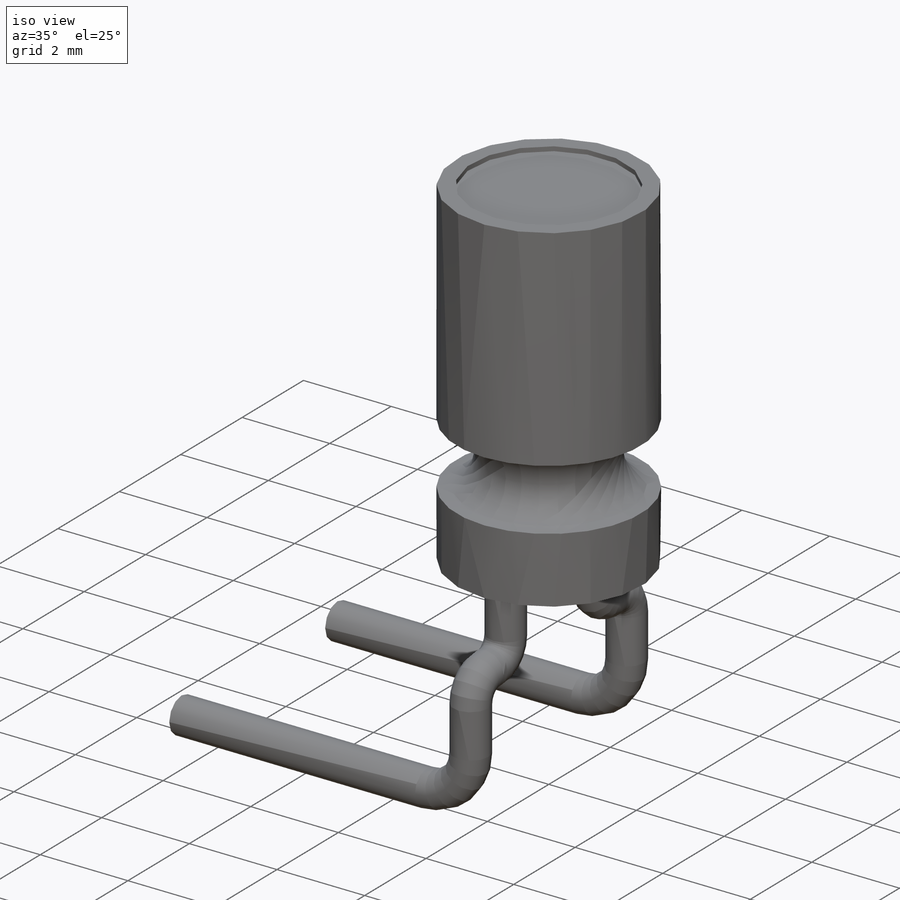
[diagram: iso view]
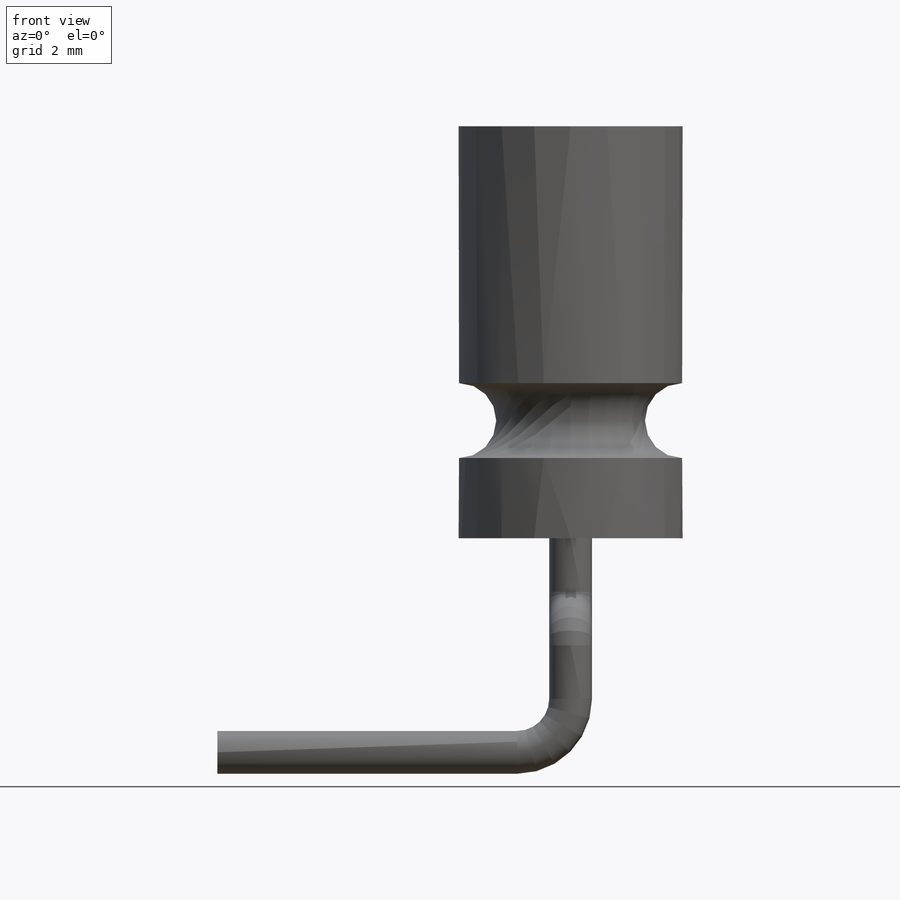
[diagram: front view]
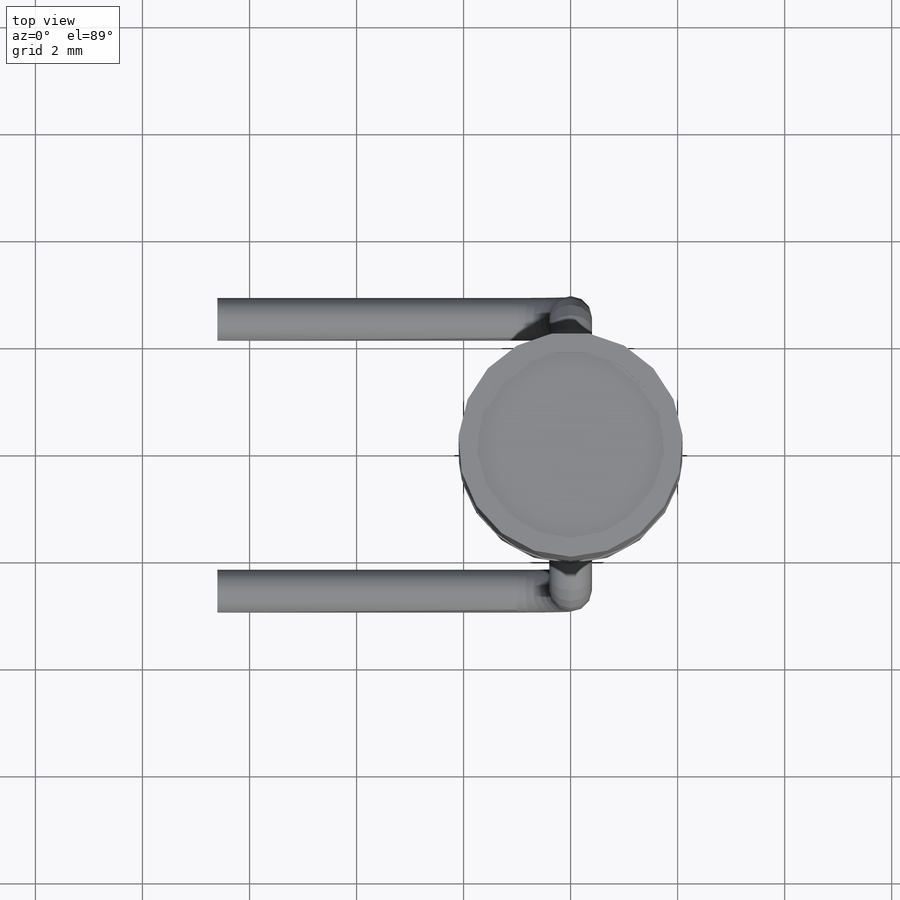
[diagram: top view]
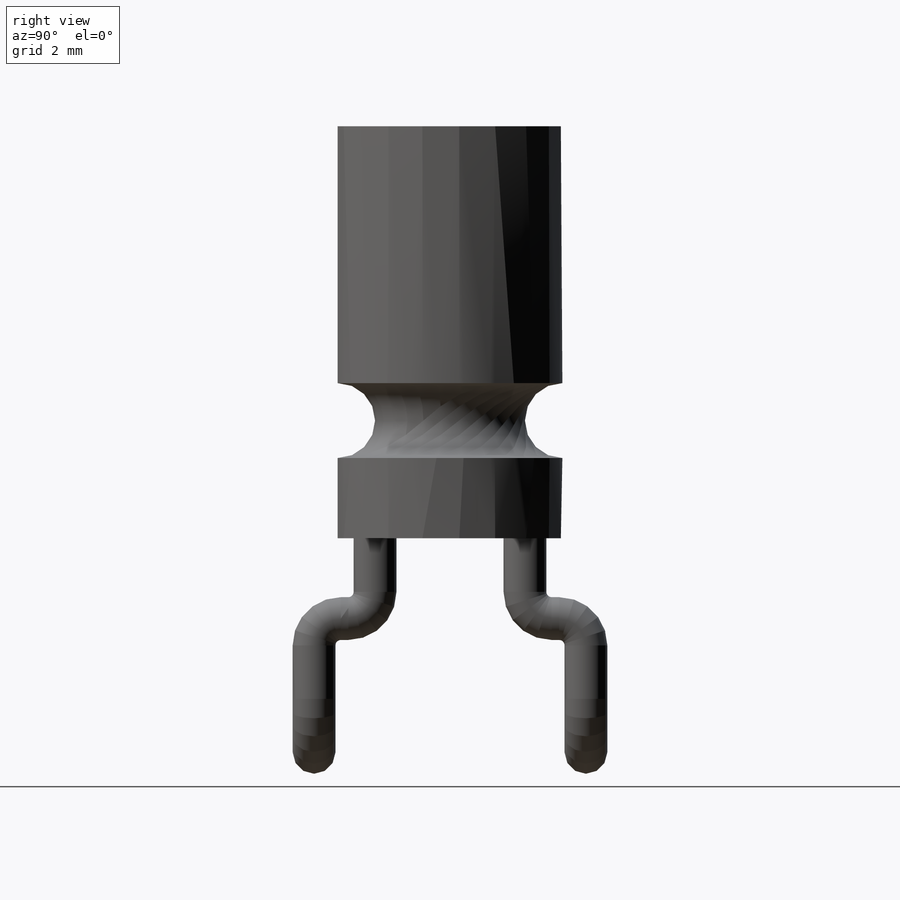
[diagram: right view]
SOLIDWORKS PART (.sldprt)
format: sldprt  version: not decoded by parser v0  size: 238,080 bytes
history: native  units: mm
features: sketch x6, plane x5, sweep x2, material x1, revolve x1, cut_extrude x1, mirror x1 (+8 scaffold rows collapsed)
feature tree (25):
  scaffold x8  (default folders/planes/origin — collapsed)
  material  "Matériau <non spécifié>"
  plane  "Face"
  plane  "Dessus"
  plane  "Droite"
  sketch  "Esquisse1"  dims[c1.D4=0.7mm c1.D1=7.7mm c1.D2=2.1mm c1.D3=1.5mm c1.D5=2.0mm c1.D6=~0.912594mm c2.D3=1.5mm c2.D4=0.7mm c2.D5=0.0mm]
  revolve  "Révolution1"  Angle=360deg
  sketch  "Esquisse2"  dims[D1=3.5mm]
  cut_extrude  "Enlèv. mat.-Extru.1"  Depth=0.1mm
  sketch  "Esquisse3"  dims[D1=0.8mm D2=2.54mm]
  sketch  "Esquisse4"  dims[c1.D4=0.5mm c1.D1=1.5mm c1.D2=2.54mm c1.D3=2.0mm c2.D2=2.54mm]
  sweep  "Balayage1"
  sketch  "Esquisse5"  dims[D1=~0.293018mm]
  plane  "Plan1"
  sketch  "Esquisse6"  dims[D3=1.0mm D1=4.0mm D2=2.0mm]
  sweep  "Balayage2"
  plane  "Plan2"  Offset=2.54mm
  mirror  "Symétrie1"
decode coverage: 8 of 11 modeling features carry decoded parameters
note: ~ marks probable driven/reference dimensions
note: suppression state not decoded; provenance and decode notes live in map.json
